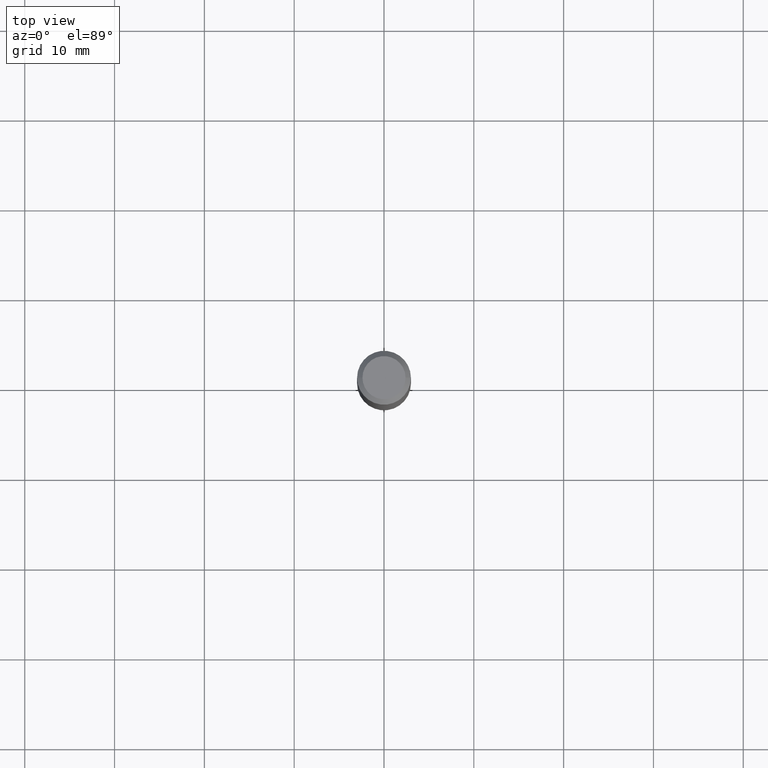
[diagram: clean part render]
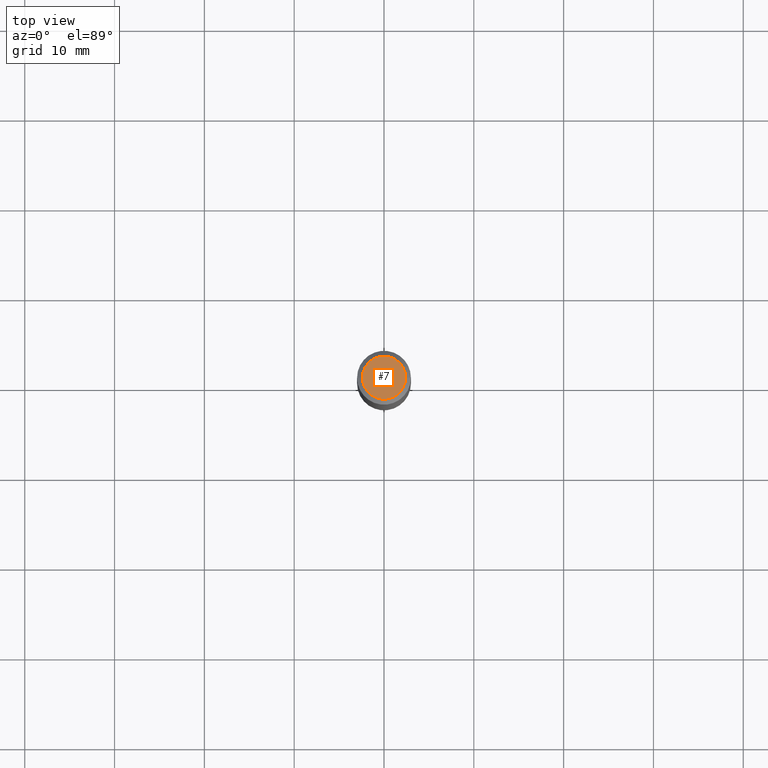
[diagram: same view with one face highlighted and labeled with its STEP entity id]
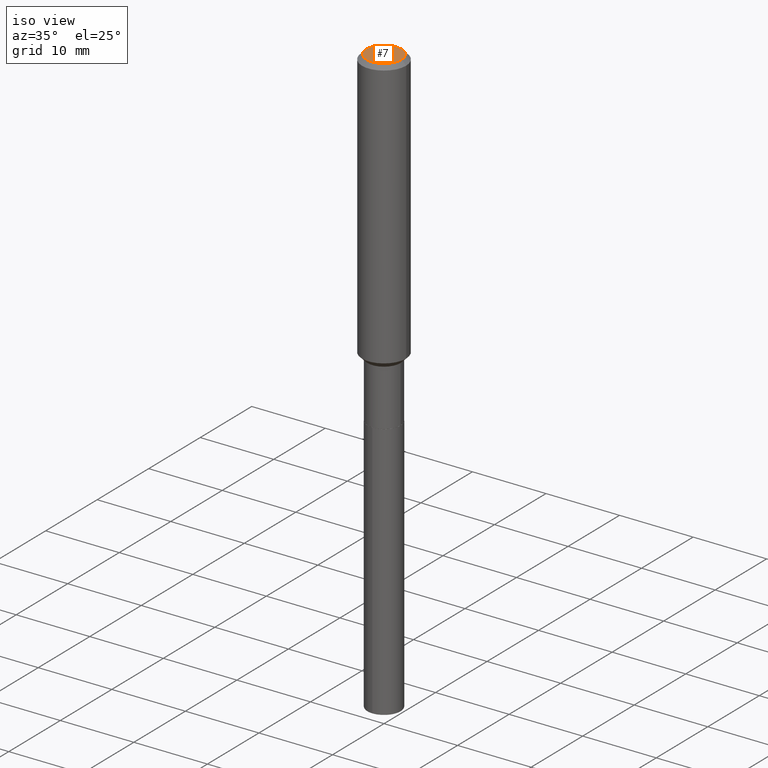
[diagram: same view with one face highlighted and labeled with its STEP entity id]
A machine part, top view. The second image highlights one B-rep face of the part: STEP entity #7.
A second angle (iso view) of the same face is appended — the face is thin or edge-on in the first view.
In plain terms, the highlighted planar face has unit normal (0, -0, -1).
Its self-contained STEP definition (entity closure, byte-faithful):
#7 = ADVANCED_FACE ( 'NONE', ( #397 ), #177, .F. ) ;
#52 = CARTESIAN_POINT ( 'NONE',  ( 4.716267017698007905E-46, -6.733579360998555036E-32, -1.928573779297252010E-17 ) ) ;
#64 = DIRECTION ( 'NONE',  ( 2.438088387897960049E-29, -3.491481338843145188E-15, -1.000000000000000000 ) ) ;
#69 = ORIENTED_EDGE ( 'NONE', *, *, #228, .T. ) ;
#84 = AXIS2_PLACEMENT_3D ( 'NONE', #104, #64, #174 ) ;
#104 = CARTESIAN_POINT ( 'NONE',  ( 2.358133508849003952E-46, -3.366789680499277518E-32, -9.642868896486260050E-18 ) ) ;
#124 = DIRECTION ( 'NONE',  ( -2.445468806185136597E-29, 3.491481338843145583E-15, 1.000000000000000000 ) ) ;
#126 = CARTESIAN_POINT ( 'NONE',  ( 4.716267017698007905E-46, -6.733579360998555036E-32, -1.928573779297252010E-17 ) ) ;
#138 = CARTESIAN_POINT ( 'NONE',  ( 0.09447999999999998066, -7.704367267948738690E-16, -1.928573779296752193E-17 ) ) ;
#153 = AXIS2_PLACEMENT_3D ( 'NONE', #52, #124, #310 ) ;
#174 = DIRECTION ( 'NONE',  ( -1.000000000000000000, 6.982962677686265922E-15, -4.876176775795935793E-29 ) ) ;
#177 = PLANE ( 'NONE',  #84 ) ;
#220 = ORIENTED_EDGE ( 'NONE', *, *, #447, .T. ) ;
#228 = EDGE_CURVE ( 'NONE', #245, #320, #418, .T. ) ;
#238 = DIRECTION ( 'NONE',  ( 1.000000000000000000, -6.982962677686267499E-15, 4.875432709231658792E-29 ) ) ;
#245 = VERTEX_POINT ( 'NONE', #138 ) ;
#281 = AXIS2_PLACEMENT_3D ( 'NONE', #126, #307, #238 ) ;
#283 = CARTESIAN_POINT ( 'NONE',  ( -0.09447999999999998066, 7.009847083995354710E-16, -1.928573779297727792E-17 ) ) ;
#307 = DIRECTION ( 'NONE',  ( -2.445468806185136597E-29, 3.491481338843145583E-15, 1.000000000000000000 ) ) ;
#310 = DIRECTION ( 'NONE',  ( 1.000000000000000000, -6.982962677686267499E-15, 4.875432709231658792E-29 ) ) ;
#320 = VERTEX_POINT ( 'NONE', #283 ) ;
#348 = CIRCLE ( 'NONE', #153, 0.09447999999999998066 ) ;
#397 = FACE_OUTER_BOUND ( 'NONE', #425, .T. ) ;
#418 = CIRCLE ( 'NONE', #281, 0.09447999999999998066 ) ;
#425 = EDGE_LOOP ( 'NONE', ( #220, #69 ) ) ;
#447 = EDGE_CURVE ( 'NONE', #320, #245, #348, .T. ) ;